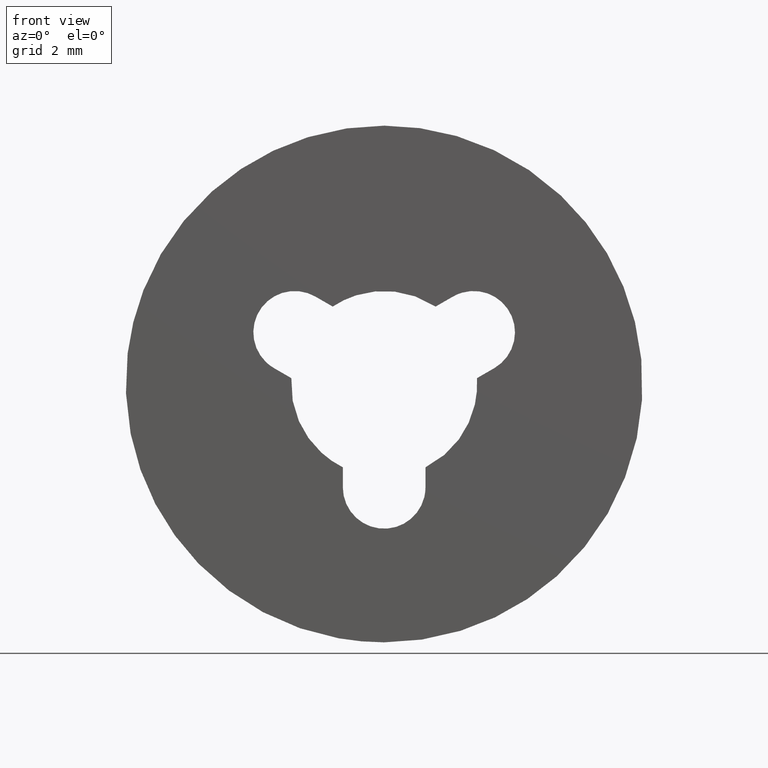
[diagram: clean part render]
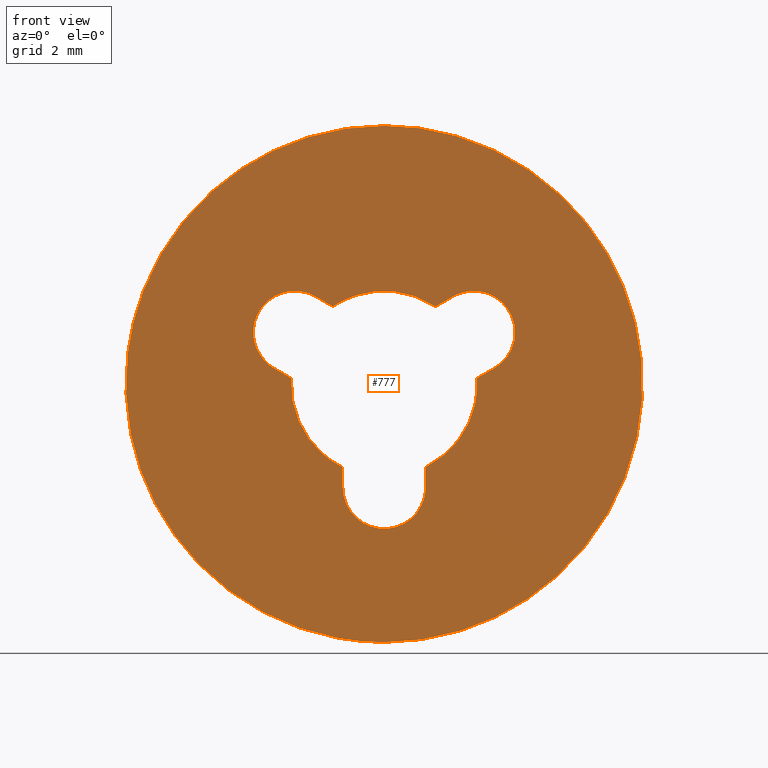
[diagram: same view with one face highlighted and labeled with its STEP entity id]
A machine part, front view. The second image highlights one B-rep face of the part: STEP entity #777.
In plain terms, the highlighted face is a freeform B-spline surface patch.
Its self-contained STEP definition (entity closure, byte-faithful):
#66=CARTESIAN_POINT('',(-4.965048007634929,3.045997E-014,0.590168011561354));
#67=VERTEX_POINT('',#66);
#68=CARTESIAN_POINT('',(0.0,0.0,-5.0));
#69=VERTEX_POINT('',#68);
#70=CARTESIAN_POINT('',(-4.965048007634929,3.045997E-014,0.590168011561354));
#71=CARTESIAN_POINT('',(-5.000000000000001,0.0,0.296119000685819));
#72=CARTESIAN_POINT('',(-5.0,0.0,0.0));
#73=CARTESIAN_POINT('',(-5.000000000000001,0.0,-5.000000000000001));
#74=CARTESIAN_POINT('',(0.0,0.0,-5.0));
#82=(BOUNDED_CURVE()B_SPLINE_CURVE(2,(#70,#71,#72,#73,#74),.UNSPECIFIED.,.F.,.U.)B_SPLINE_CURVE_WITH_KNOTS((3,2,3),(0.229562581136241,0.250000000000000,0.500000000000000),.UNSPECIFIED.)CURVE()GEOMETRIC_REPRESENTATION_ITEM()RATIONAL_B_SPLINE_CURVE((0.956026965128767,0.976056074419019,1.0,0.707106781186548,1.0))REPRESENTATION_ITEM(''));
#83=EDGE_CURVE('',#67,#69,#82,.T.);
#124=CARTESIAN_POINT('',(4.990674101339240,2.014708E-014,-0.305240911770624));
#125=VERTEX_POINT('',#124);
#131=CARTESIAN_POINT('',(0.0,0.0,-5.0));
#132=CARTESIAN_POINT('',(4.703532020823824,0.0,-4.999999999999999));
#133=CARTESIAN_POINT('',(4.990674101339240,2.014708E-014,-0.305240911770624));
#141=(BOUNDED_CURVE()B_SPLINE_CURVE(2,(#131,#132,#133),.UNSPECIFIED.,.F.,.U.)B_SPLINE_CURVE_WITH_KNOTS((3,3),(0.500000000000000,0.739333023987528),.UNSPECIFIED.)CURVE()GEOMETRIC_REPRESENTATION_ITEM()RATIONAL_B_SPLINE_CURVE((1.0,0.719603920943743,0.976072174005725))REPRESENTATION_ITEM(''));
#142=EDGE_CURVE('',#69,#125,#141,.T.);
#165=CARTESIAN_POINT('',(0.0,0.0,5.0));
#166=VERTEX_POINT('',#165);
#167=CARTESIAN_POINT('',(0.0,0.0,5.0));
#168=CARTESIAN_POINT('',(-4.440875477595059,0.0,5.000000000000001));
#169=CARTESIAN_POINT('',(-4.965048007634929,3.045997E-014,0.590168011561354));
#177=(BOUNDED_CURVE()B_SPLINE_CURVE(2,(#167,#168,#169),.UNSPECIFIED.,.F.,.U.)B_SPLINE_CURVE_WITH_KNOTS((3,3),(0.0,0.229562581136241),.UNSPECIFIED.)CURVE()GEOMETRIC_REPRESENTATION_ITEM()RATIONAL_B_SPLINE_CURVE((1.0,0.731050706767529,0.956026965128767))REPRESENTATION_ITEM(''));
#178=EDGE_CURVE('',#166,#67,#177,.T.);
#180=CARTESIAN_POINT('',(4.990674101339240,2.014708E-014,-0.305240911770624));
#181=CARTESIAN_POINT('',(5.000000000000001,0.0,-0.152762921037389));
#182=CARTESIAN_POINT('',(5.0,0.0,0.0));
#183=CARTESIAN_POINT('',(5.000000000000001,0.0,5.000000000000001));
#184=CARTESIAN_POINT('',(0.0,0.0,5.0));
#192=(BOUNDED_CURVE()B_SPLINE_CURVE(2,(#180,#181,#182,#183,#184),.UNSPECIFIED.,.F.,.U.)B_SPLINE_CURVE_WITH_KNOTS((3,2,3),(0.739333023987528,0.750000000000000,1.0),.UNSPECIFIED.)CURVE()GEOMETRIC_REPRESENTATION_ITEM()RATIONAL_B_SPLINE_CURVE((0.976072174005725,0.987502860242804,1.0,0.707106781186548,1.0))REPRESENTATION_ITEM(''));
#193=EDGE_CURVE('',#125,#166,#192,.T.);
#248=CARTESIAN_POINT('',(-0.800000000000000,0.0,-2.0));
#249=VERTEX_POINT('',#248);
#250=CARTESIAN_POINT('',(0.799999999999988,0.0,-1.999999860373660));
#251=VERTEX_POINT('',#250);
#252=CARTESIAN_POINT('',(-0.800000000000000,0.0,-2.0));
#253=CARTESIAN_POINT('',(-0.800000000000000,0.0,-2.461880246379777));
#254=CARTESIAN_POINT('',(-0.399999959693347,0.0,-2.692820346298606));
#255=CARTESIAN_POINT('',(0.000000080613306,0.0,-2.923760446217436));
#256=CARTESIAN_POINT('',(0.400000080613302,0.0,-2.692820276485433));
#257=CARTESIAN_POINT('',(0.800000080613298,0.0,-2.461880106753430));
#258=CARTESIAN_POINT('',(0.799999999999988,0.0,-1.999999860373660));
#266=(BOUNDED_CURVE()B_SPLINE_CURVE(2,(#252,#253,#254,#255,#256,#257,#258),.UNSPECIFIED.,.F.,.U.)B_SPLINE_CURVE_WITH_KNOTS((3,2,2,3),(0.0,0.333333333333333,0.666666666666667,1.0),.UNSPECIFIED.)CURVE()GEOMETRIC_REPRESENTATION_ITEM()RATIONAL_B_SPLINE_CURVE((1.0,0.866025389240028,1.0,0.866025389240028,1.0,0.866025389240028,1.0))REPRESENTATION_ITEM(''));
#267=EDGE_CURVE('',#249,#251,#266,.T.);
#308=CARTESIAN_POINT('',(-0.800000000000000,0.0,-1.612451549659710));
#309=VERTEX_POINT('',#308);
#310=CARTESIAN_POINT('',(-0.800000000000000,0.0,-1.612451549659710));
#311=CARTESIAN_POINT('',(-0.800000000000000,0.0,-2.0));
#312=QUASI_UNIFORM_CURVE('',1,(#310,#311),.UNSPECIFIED.,.F.,.U.);
#313=EDGE_CURVE('',#309,#249,#312,.T.);
#345=CARTESIAN_POINT('',(-1.796423492117540,0.0,0.113413566067874));
#346=VERTEX_POINT('',#345);
#347=CARTESIAN_POINT('',(-1.796423492117537,0.0,0.113413566067874));
#348=CARTESIAN_POINT('',(-1.871810468826477,0.0,-1.080684641536401));
#349=CARTESIAN_POINT('',(-0.800000000000000,0.0,-1.612451549659710));
#357=(BOUNDED_CURVE()B_SPLINE_CURVE(2,(#347,#348,#349),.UNSPECIFIED.,.F.,.U.)CURVE()GEOMETRIC_REPRESENTATION_ITEM()QUASI_UNIFORM_CURVE()RATIONAL_B_SPLINE_CURVE((1.0,0.832802137488904,1.0))REPRESENTATION_ITEM(''));
#358=EDGE_CURVE('',#346,#309,#357,.T.);
#389=CARTESIAN_POINT('',(-2.123123344245450,0.0,0.302073969352699));
#390=VERTEX_POINT('',#389);
#391=CARTESIAN_POINT('',(-2.123123344245450,0.0,0.302073969352699));
#392=CARTESIAN_POINT('',(-1.796423492117540,0.0,0.113413566067874));
#393=QUASI_UNIFORM_CURVE('',1,(#391,#392),.UNSPECIFIED.,.F.,.U.);
#394=EDGE_CURVE('',#390,#346,#393,.T.);
#430=CARTESIAN_POINT('',(-1.332000000000000,0.0,1.692800000000000));
#431=VERTEX_POINT('',#430);
#432=CARTESIAN_POINT('',(-1.332000000000000,0.0,1.692799999999999));
#433=CARTESIAN_POINT('',(-1.733986352333857,0.0,1.924936338147488));
#434=CARTESIAN_POINT('',(-2.135008295443140,0.0,1.691137903387843));
#435=CARTESIAN_POINT('',(-2.536030238552423,0.0,1.457339468628198));
#436=CARTESIAN_POINT('',(-2.532058660846635,0.0,0.993157894756795));
#437=CARTESIAN_POINT('',(-2.528087083140846,0.0,0.528976320885393));
#438=CARTESIAN_POINT('',(-2.123123344245450,0.0,0.302073969352700));
#446=(BOUNDED_CURVE()B_SPLINE_CURVE(2,(#432,#433,#434,#435,#436,#437,#438),.UNSPECIFIED.,.F.,.U.)B_SPLINE_CURVE_WITH_KNOTS((3,2,2,3),(0.0,0.333333333333333,0.666666666666667,1.0),.UNSPECIFIED.)CURVE()GEOMETRIC_REPRESENTATION_ITEM()RATIONAL_B_SPLINE_CURVE((1.0,0.864942373379540,1.0,0.864942373379540,1.0,0.864942373379540,1.0))REPRESENTATION_ITEM(''));
#447=EDGE_CURVE('',#431,#390,#446,.T.);
#482=CARTESIAN_POINT('',(-0.996449955275269,0.0,1.499028847831792));
#483=VERTEX_POINT('',#482);
#484=CARTESIAN_POINT('',(-0.996449955275269,0.0,1.499028847831792));
#485=CARTESIAN_POINT('',(-1.332000000000000,0.0,1.692800000000000));
#486=QUASI_UNIFORM_CURVE('',1,(#484,#485),.UNSPECIFIED.,.F.,.U.);
#487=EDGE_CURVE('',#483,#431,#486,.T.);
#519=CARTESIAN_POINT('',(0.996449962194055,0.0,1.499028843232666));
#520=VERTEX_POINT('',#519);
#521=CARTESIAN_POINT('',(0.996449962194055,0.0,1.499028843232666));
#522=CARTESIAN_POINT('',(4.987982E-009,0.0,2.161399368435529));
#523=CARTESIAN_POINT('',(-0.996449955275270,0.0,1.499028847831793));
#531=(BOUNDED_CURVE()B_SPLINE_CURVE(2,(#521,#522,#523),.UNSPECIFIED.,.F.,.U.)CURVE()GEOMETRIC_REPRESENTATION_ITEM()QUASI_UNIFORM_CURVE()RATIONAL_B_SPLINE_CURVE((1.0,0.832793803073461,1.0))REPRESENTATION_ITEM(''));
#532=EDGE_CURVE('',#520,#483,#531,.T.);
#563=CARTESIAN_POINT('',(1.327538441845376,0.0,1.690166607177930));
#564=VERTEX_POINT('',#563);
#565=CARTESIAN_POINT('',(1.327538441845376,0.0,1.690166607177930));
#566=CARTESIAN_POINT('',(0.996449962194055,0.0,1.499028843232666));
#567=QUASI_UNIFORM_CURVE('',1,(#565,#566),.UNSPECIFIED.,.F.,.U.);
#568=EDGE_CURVE('',#564,#520,#567,.T.);
#604=CARTESIAN_POINT('',(2.136661558152790,0.0,0.309833392820983));
#605=VERTEX_POINT('',#604);
#606=CARTESIAN_POINT('',(2.136661558152790,0.0,0.309833392820983));
#607=CARTESIAN_POINT('',(2.535129434593691,0.0,0.543407117324514));
#608=CARTESIAN_POINT('',(2.532082593737129,0.0,1.005277283166134));
#609=CARTESIAN_POINT('',(2.529035752880570,0.0,1.467147449007754));
#610=CARTESIAN_POINT('',(2.127521035583111,0.0,1.695443890345138));
#611=CARTESIAN_POINT('',(1.726006318285654,0.0,1.923740331682522));
#612=CARTESIAN_POINT('',(1.327538441845376,0.0,1.690166607177930));
#620=(BOUNDED_CURVE()B_SPLINE_CURVE(2,(#606,#607,#608,#609,#610,#611,#612),.UNSPECIFIED.,.F.,.U.)B_SPLINE_CURVE_WITH_KNOTS((3,2,2,3),(0.0,0.333333333333333,0.666666666666667,1.0),.UNSPECIFIED.)CURVE()GEOMETRIC_REPRESENTATION_ITEM()RATIONAL_B_SPLINE_CURVE((1.0,0.866025403784217,1.0,0.866025403784217,1.0,0.866025403784217,1.0))REPRESENTATION_ITEM(''));
#621=EDGE_CURVE('',#605,#564,#620,.T.);
#656=CARTESIAN_POINT('',(1.796423492363695,0.0,0.113413562168851));
#657=VERTEX_POINT('',#656);
#658=CARTESIAN_POINT('',(1.796423492363695,0.0,0.113413562168851));
#659=CARTESIAN_POINT('',(2.136661558152790,0.0,0.309833392820983));
#660=QUASI_UNIFORM_CURVE('',1,(#658,#659),.UNSPECIFIED.,.F.,.U.);
#661=EDGE_CURVE('',#657,#605,#660,.T.);
#693=CARTESIAN_POINT('',(0.800000000000012,0.0,-1.612451549659705));
#694=VERTEX_POINT('',#693);
#695=CARTESIAN_POINT('',(0.800000000000011,0.0,-1.612451549659704));
#696=CARTESIAN_POINT('',(1.871810466303460,0.0,-1.080684642788159));
#697=CARTESIAN_POINT('',(1.796423492363694,0.0,0.113413562168851));
#705=(BOUNDED_CURVE()B_SPLINE_CURVE(2,(#695,#696,#697),.UNSPECIFIED.,.F.,.U.)CURVE()GEOMETRIC_REPRESENTATION_ITEM()QUASI_UNIFORM_CURVE()RATIONAL_B_SPLINE_CURVE((1.0,0.832802138089652,1.0))REPRESENTATION_ITEM(''));
#706=EDGE_CURVE('',#694,#657,#705,.T.);
#737=CARTESIAN_POINT('',(0.799999999999988,0.0,-1.999999860373660));
#738=CARTESIAN_POINT('',(0.800000000000012,0.0,-1.612451549659705));
#739=QUASI_UNIFORM_CURVE('',1,(#737,#738),.UNSPECIFIED.,.F.,.U.);
#740=EDGE_CURVE('',#251,#694,#739,.T.);
#752=CARTESIAN_POINT('',(-5.499409322677553,0.0,5.499499980618060));
#753=CARTESIAN_POINT('',(5.499378298459947,0.0,5.499499980618060));
#754=CARTESIAN_POINT('',(-5.499409322677553,0.0,-5.499500248838961));
#755=CARTESIAN_POINT('',(5.499378298459947,0.0,-5.499500248838961));
#756=B_SPLINE_SURFACE_WITH_KNOTS('',1,1,((#752,#754),(#753,#755)),.UNSPECIFIED.,.F.,.F.,.U.,(2,2),(2,2),(0.0,10.998787621137501),(0.0,10.999000229457019),.UNSPECIFIED.);
#757=ORIENTED_EDGE('',*,*,#178,.T.);
#758=ORIENTED_EDGE('',*,*,#83,.T.);
#759=ORIENTED_EDGE('',*,*,#142,.T.);
#760=ORIENTED_EDGE('',*,*,#193,.T.);
#761=EDGE_LOOP('',(#757,#758,#759,#760));
#762=FACE_OUTER_BOUND('',#761,.T.);
#763=ORIENTED_EDGE('',*,*,#740,.F.);
#764=ORIENTED_EDGE('',*,*,#267,.F.);
#765=ORIENTED_EDGE('',*,*,#313,.F.);
#766=ORIENTED_EDGE('',*,*,#358,.F.);
#767=ORIENTED_EDGE('',*,*,#394,.F.);
#768=ORIENTED_EDGE('',*,*,#447,.F.);
#769=ORIENTED_EDGE('',*,*,#487,.F.);
#770=ORIENTED_EDGE('',*,*,#532,.F.);
#771=ORIENTED_EDGE('',*,*,#568,.F.);
#772=ORIENTED_EDGE('',*,*,#621,.F.);
#773=ORIENTED_EDGE('',*,*,#661,.F.);
#774=ORIENTED_EDGE('',*,*,#706,.F.);
#775=EDGE_LOOP('',(#763,#764,#765,#766,#767,#768,#769,#770,#771,#772,#773,#774));
#776=FACE_BOUND('',#775,.T.);
#777=ADVANCED_FACE('',(#762,#776),#756,.F.);